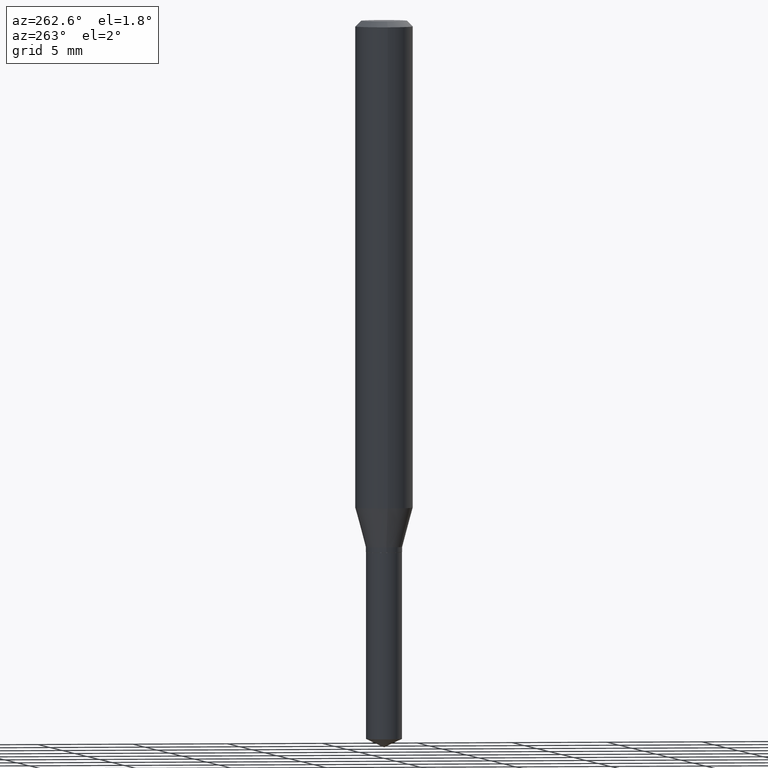
[diagram: clean part render]
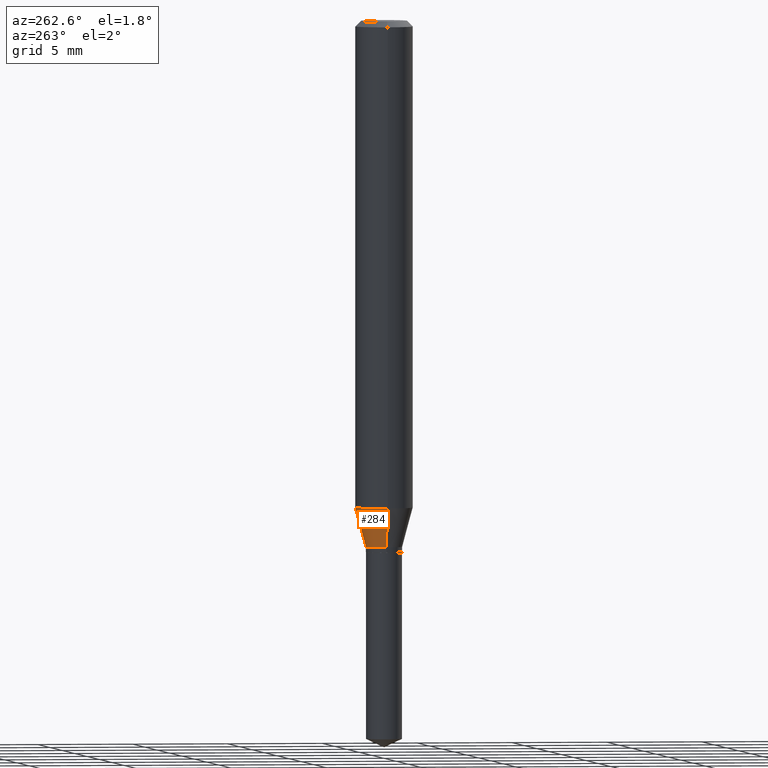
[diagram: same view with one face highlighted and labeled with its STEP entity id]
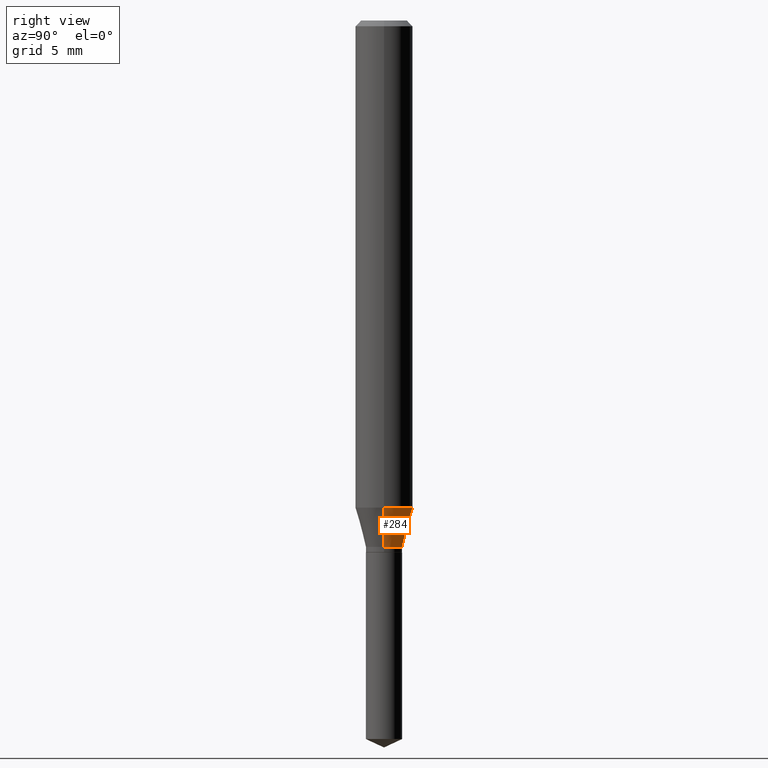
[diagram: same view with one face highlighted and labeled with its STEP entity id]
A machine part, auxiliary view. The second image highlights one B-rep face of the part: STEP entity #284.
A second angle (right view) of the same face is appended — the face is thin or edge-on in the first view.
In plain terms, the highlighted conical surface has half-angle 15 deg.
Its self-contained STEP definition (entity closure, byte-faithful):
#3 = CIRCLE ( 'NONE', #302, 0.03739999999999995411 ) ;
#9 = CARTESIAN_POINT ( 'NONE',  ( 0.03739999999999995411, -4.043484538514245916E-15, -1.083299999999999930 ) ) ;
#10 = LINE ( 'NONE', #165, #34 ) ;
#15 = DIRECTION ( 'NONE',  ( -2.445468806185136597E-29, 3.491481338843145583E-15, 1.000000000000000000 ) ) ;
#23 = CONICAL_SURFACE ( 'NONE', #294, 0.03739999999999995411, 0.2617993877991501295 ) ;
#34 = VECTOR ( 'NONE', #125, 39.37007874015747433 ) ;
#38 = CARTESIAN_POINT ( 'NONE',  ( -0.05905000000000013016, -3.080638397409715061E-15, -1.002501100016133240 ) ) ;
#40 = DIRECTION ( 'NONE',  ( 1.000000000000000000, -6.982962677686265133E-15, 0.000000000000000000 ) ) ;
#81 = CARTESIAN_POINT ( 'NONE',  ( 0.03739999999999995411, -4.043484538514245916E-15, -1.083299999999999930 ) ) ;
#84 = CARTESIAN_POINT ( 'NONE',  ( 2.649176357740358198E-29, -3.782321734368779516E-15, -1.083299999999999930 ) ) ;
#91 = VERTEX_POINT ( 'NONE', #81 ) ;
#96 = CARTESIAN_POINT ( 'NONE',  ( 0.05905000000000013016, -3.912557828993430263E-15, -1.002501100016133240 ) ) ;
#115 = ORIENTED_EDGE ( 'NONE', *, *, #425, .T. ) ;
#122 = EDGE_CURVE ( 'NONE', #139, #371, #10, .T. ) ;
#125 = DIRECTION ( 'NONE',  ( -0.2588190451025214611, 5.211531920934551042E-15, 0.9659258262890682012 ) ) ;
#139 = VERTEX_POINT ( 'NONE', #174 ) ;
#150 = ORIENTED_EDGE ( 'NONE', *, *, #177, .F. ) ;
#161 = LINE ( 'NONE', #9, #300 ) ;
#162 = FACE_OUTER_BOUND ( 'NONE', #322, .T. ) ;
#164 = DIRECTION ( 'NONE',  ( 0.2588190451025214611, 1.565188264969621573E-15, 0.9659258262890682012 ) ) ;
#165 = CARTESIAN_POINT ( 'NONE',  ( -0.03739999999999995411, -3.516578751194502126E-15, -1.083299999999999930 ) ) ;
#174 = CARTESIAN_POINT ( 'NONE',  ( -0.03739999999999995411, -3.535258176357312608E-15, -1.083299999999999930 ) ) ;
#177 = EDGE_CURVE ( 'NONE', #471, #371, #324, .T. ) ;
#192 = EDGE_CURVE ( 'NONE', #91, #471, #161, .T. ) ;
#221 = DIRECTION ( 'NONE',  ( -2.445468806185136597E-29, 3.491481338843145583E-15, 1.000000000000000000 ) ) ;
#225 = ORIENTED_EDGE ( 'NONE', *, *, #192, .F. ) ;
#243 = CARTESIAN_POINT ( 'NONE',  ( 2.451585168255739892E-29, -3.500213882876055342E-15, -1.002501100016133240 ) ) ;
#284 = ADVANCED_FACE ( 'NONE', ( #162 ), #23, .T. ) ;
#294 = AXIS2_PLACEMENT_3D ( 'NONE', #84, #15, #416 ) ;
#300 = VECTOR ( 'NONE', #164, 39.37007874015747433 ) ;
#302 = AXIS2_PLACEMENT_3D ( 'NONE', #473, #221, #319 ) ;
#319 = DIRECTION ( 'NONE',  ( 1.000000000000000000, -6.982962677686270655E-15, 0.000000000000000000 ) ) ;
#322 = EDGE_LOOP ( 'NONE', ( #115, #468, #150, #225 ) ) ;
#324 = CIRCLE ( 'NONE', #339, 0.05905000000000013016 ) ;
#339 = AXIS2_PLACEMENT_3D ( 'NONE', #243, #459, #40 ) ;
#371 = VERTEX_POINT ( 'NONE', #38 ) ;
#416 = DIRECTION ( 'NONE',  ( 1.000000000000000000, -6.982962677686270655E-15, 0.000000000000000000 ) ) ;
#425 = EDGE_CURVE ( 'NONE', #91, #139, #3, .T. ) ;
#459 = DIRECTION ( 'NONE',  ( -2.445468806185136597E-29, 3.491481338843145583E-15, 1.000000000000000000 ) ) ;
#468 = ORIENTED_EDGE ( 'NONE', *, *, #122, .T. ) ;
#471 = VERTEX_POINT ( 'NONE', #96 ) ;
#473 = CARTESIAN_POINT ( 'NONE',  ( 2.649176357740358198E-29, -3.782321734368779516E-15, -1.083299999999999930 ) ) ;